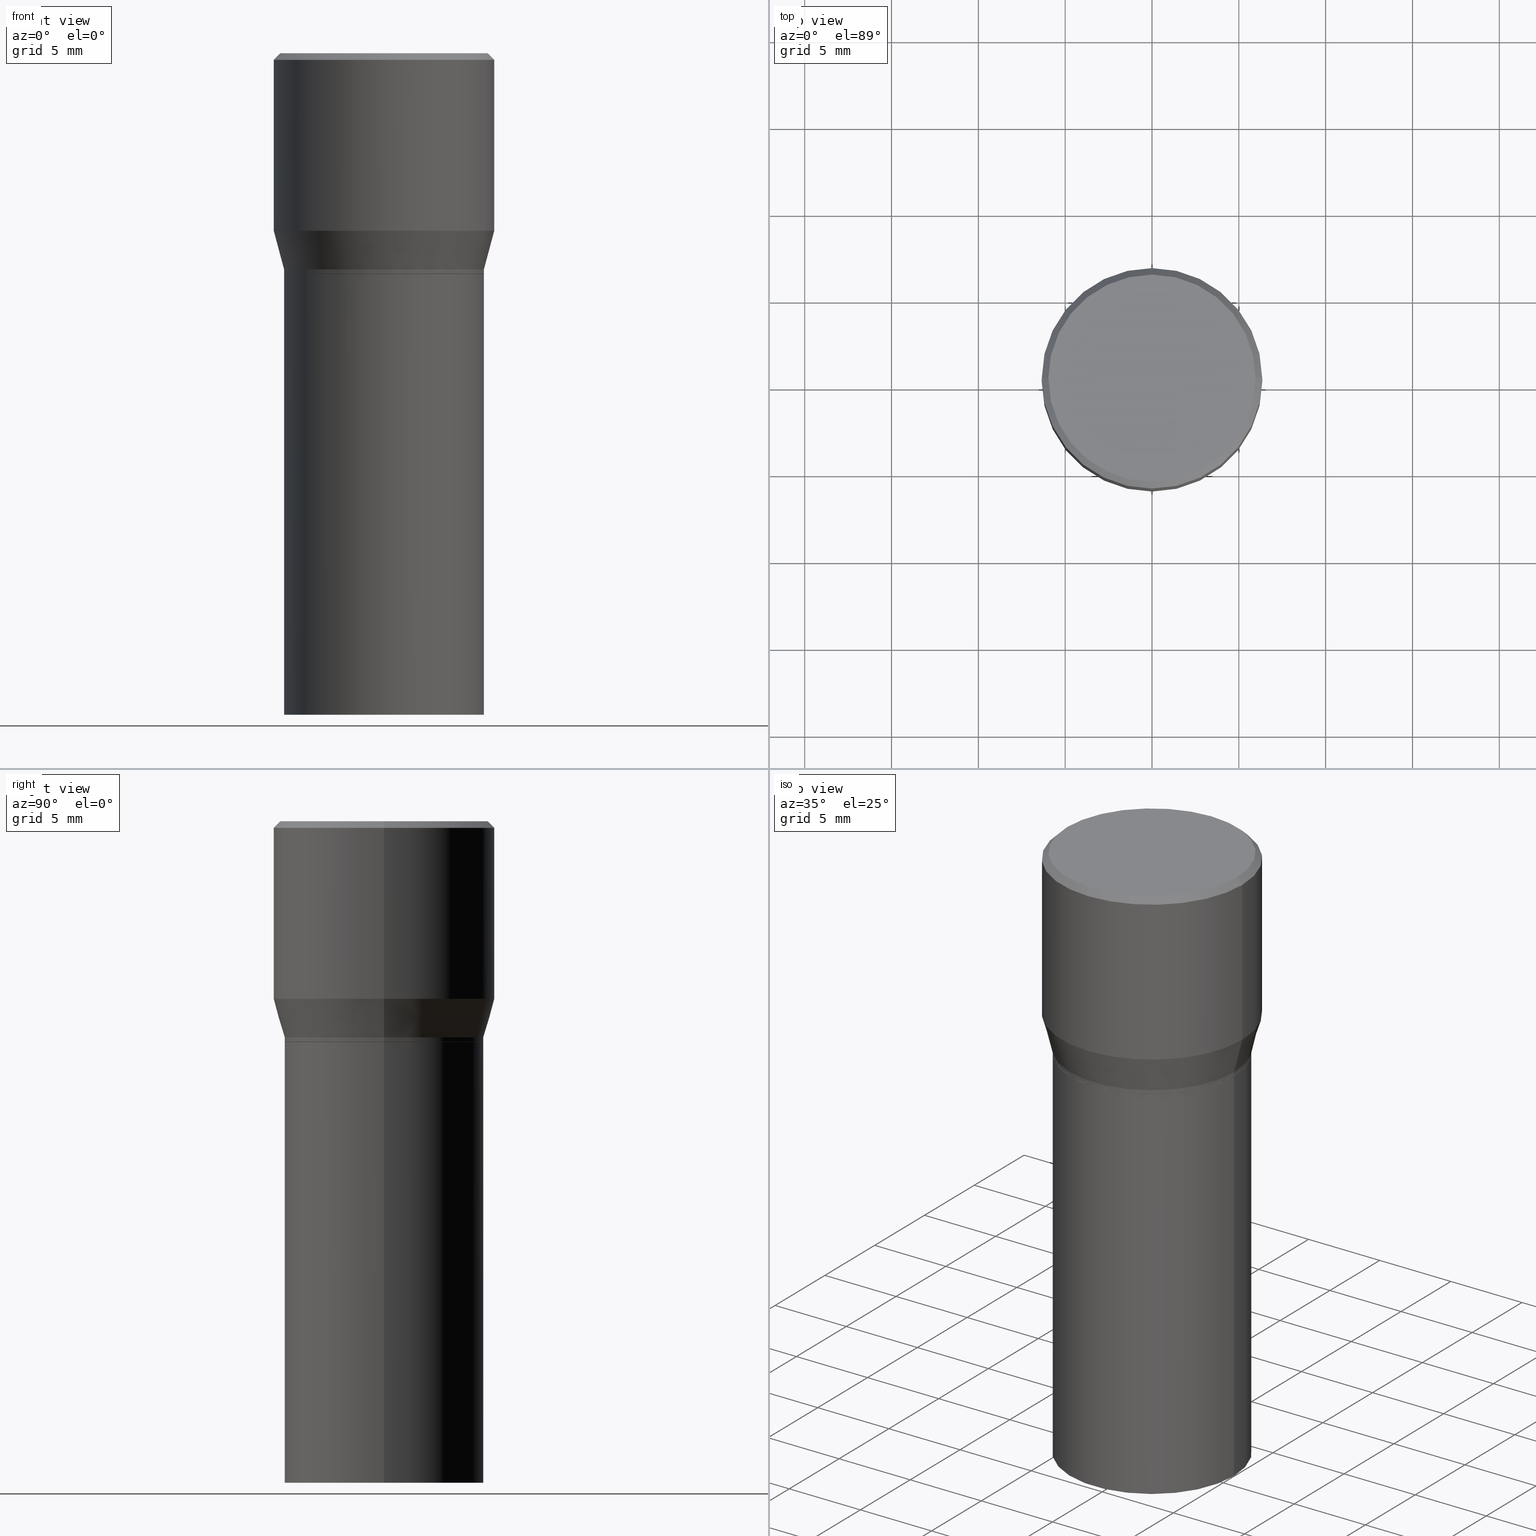
[diagram: canonical four-view strip — front | top / right | iso, engineering-drawing reading convention]
A machine part, canonical four-view strip (front | top / right | iso — engineering-drawing reading convention). The complete STEP part file that produces these views, byte-faithful:
ISO-10303-21;
HEADER;
FILE_DESCRIPTION (( 'STEP AP203' ),
    '1' );
FILE_NAME ('30557.STEP',
    '2024-03-13T16:16:12',
    ( '' ),
    ( '' ),
    'SwSTEP 2.0',
    'SolidWorks 2023',
    '' );
FILE_SCHEMA (( 'CONFIG_CONTROL_DESIGN' ));
ENDSEC;

DATA;
#1 = ORIENTED_EDGE ( 'NONE', *, *, #395, .T. ) ;
#2 = APPROVAL ( #41, 'UNSPECIFIED' ) ;
#3 = ORIENTED_EDGE ( 'NONE', *, *, #202, .T. ) ;
#4 = MANIFOLD_SOLID_BREP ( 'Body-Move/Copy2[1]', #391 ) ;
#5 = CARTESIAN_POINT ( 'NONE',  ( 9.842606206466859638E-30, -1.405263310189985589E-15, -0.4024834085625100810 ) ) ;
#6 = LOCAL_TIME ( 12, 16, 12.00000000000000000, #49 ) ;
#7 = ADVANCED_FACE ( 'NONE', ( #206 ), #348, .F. ) ;
#8 = DIRECTION ( 'NONE',  ( 1.000000000000000000, -6.982962677686265922E-15, 0.000000000000000000 ) ) ;
#9 = LINE ( 'NONE', #401, #205 ) ;
#10 = ORIENTED_EDGE ( 'NONE', *, *, #313, .F. ) ;
#11 = CARTESIAN_POINT ( 'NONE',  ( 1.581990194629835559E-15, 0.2265499999999982528, -0.5000000000000009992 ) ) ;
#12 = ORIENTED_EDGE ( 'NONE', *, *, #185, .T. ) ;
#13 = DIRECTION ( 'NONE',  ( -2.445468806185136597E-29, 3.491481338843145583E-15, 1.000000000000000000 ) ) ;
#14 = DIRECTION ( 'NONE',  ( 0.7071067811865441310, -7.319954787623245001E-15, -0.7071067811865509034 ) ) ;
#15 = ADVANCED_FACE ( 'NONE', ( #140 ), #457, .F. ) ;
#16 = EDGE_CURVE ( 'NONE', #291, #55, #111, .T. ) ;
#17 = AXIS2_PLACEMENT_3D ( 'NONE', #455, #132, #388 ) ;
#18 = LINE ( 'NONE', #126, #339 ) ;
#19 = ORIENTED_EDGE ( 'NONE', *, *, #180, .T. ) ;
#20 = FACE_OUTER_BOUND ( 'NONE', #355, .T. ) ;
#21 = ORIENTED_EDGE ( 'NONE', *, *, #129, .T. ) ;
#22 = EDGE_LOOP ( 'NONE', ( #3, #386, #231, #60 ) ) ;
#23 = DIRECTION ( 'NONE',  ( 1.000000000000000000, -6.982962677686265922E-15, 0.000000000000000000 ) ) ;
#24 = ORIENTED_EDGE ( 'NONE', *, *, #342, .T. ) ;
#25 = AXIS2_PLACEMENT_3D ( 'NONE', #11, #305, #372 ) ;
#26 = CARTESIAN_POINT ( 'NONE',  ( 1.222734403092568719E-29, -1.745740669421573186E-15, -0.5000000000000001110 ) ) ;
#27 = PERSON_AND_ORGANIZATION ( #99, #430 ) ;
#28 = DIRECTION ( 'NONE',  ( 1.000000000000000000, -6.982962677686266711E-15, 4.876176775795935793E-29 ) ) ;
#29 = CALENDAR_DATE ( 2024, 13, 3 ) ;
#30 = DIRECTION ( 'NONE',  ( 1.000000000000000000, -6.982962677686267499E-15, 0.000000000000000000 ) ) ;
#31 = DIRECTION ( 'NONE',  ( -1.000000000000000000, 6.982962677686266711E-15, 0.000000000000000000 ) ) ;
#32 = CIRCLE ( 'NONE', #425, 0.2265500000000000014 ) ;
#33 = ORIENTED_EDGE ( 'NONE', *, *, #43, .T. ) ;
#34 =( GEOMETRIC_REPRESENTATION_CONTEXT ( 3 ) GLOBAL_UNCERTAINTY_ASSIGNED_CONTEXT ( ( #399 ) ) GLOBAL_UNIT_ASSIGNED_CONTEXT ( ( #285, #344, #414 ) ) REPRESENTATION_CONTEXT ( 'NONE', 'WORKASPACE' ) );
#35 = SECURITY_CLASSIFICATION_LEVEL ( 'unclassified' ) ;
#36 = ORIENTED_EDGE ( 'NONE', *, *, #156, .F. ) ;
#37 = CARTESIAN_POINT ( 'NONE',  ( -3.836052468622837406E-45, 5.476866265946494270E-31, 1.568636843340877764E-16 ) ) ;
#38 = EDGE_CURVE ( 'NONE', #377, #159, #459, .T. ) ;
#39 = DIRECTION ( 'NONE',  ( 1.000000000000000000, -6.982962677686266711E-15, 4.876176775795935793E-29 ) ) ;
#40 = CIRCLE ( 'NONE', #17, 0.2500000000000000000 ) ;
#41 = APPROVAL_STATUS ( 'not_yet_approved' ) ;
#42 = CARTESIAN_POINT ( 'NONE',  ( 0.2265500000000000014, -6.819212202894542298E-15, -1.500000000000000222 ) ) ;
#43 = EDGE_CURVE ( 'NONE', #146, #219, #171, .T. ) ;
#44 = ADVANCED_FACE ( 'NONE', ( #465 ), #286, .F. ) ;
#45 = APPROVAL_ROLE ( '' ) ;
#46 = CONICAL_SURFACE ( 'NONE', #309, 0.2265499999999999736, 0.2617993877991501295 ) ;
#47 = APPROVAL_PERSON_ORGANIZATION ( #407, #2, #90 ) ;
#48 = ORIENTED_EDGE ( 'NONE', *, *, #43, .F. ) ;
#49 = COORDINATED_UNIVERSAL_TIME_OFFSET ( 5, 0, .BEHIND. ) ;
#50 = EDGE_LOOP ( 'NONE', ( #127, #117, #276, #36 ) ) ;
#51 = DIRECTION ( 'NONE',  ( 1.000000000000000000, -6.982962677686266711E-15, 0.000000000000000000 ) ) ;
#52 = DIRECTION ( 'NONE',  ( 1.000000000000000000, -6.982962677686266711E-15, 4.876176775795935793E-29 ) ) ;
#53 = DIRECTION ( 'NONE',  ( 0.7071067811865715536, -2.468850131082509496E-15, 0.7071067811865232589 ) ) ;
#54 = EDGE_LOOP ( 'NONE', ( #10, #411, #311, #408 ) ) ;
#55 = VERTEX_POINT ( 'NONE', #370 ) ;
#56 = AXIS2_PLACEMENT_3D ( 'NONE', #166, #274, #94 ) ;
#57 = CONICAL_SURFACE ( 'NONE', #319, 0.2500000000000000000, 0.7853981633974435050 ) ;
#58 = DIRECTION ( 'NONE',  ( -0.2588190451025214611, 5.211531920934551042E-15, 0.9659258262890682012 ) ) ;
#59 = VERTEX_POINT ( 'NONE', #449 ) ;
#60 = ORIENTED_EDGE ( 'NONE', *, *, #271, .F. ) ;
#61 = CC_DESIGN_PERSON_AND_ORGANIZATION_ASSIGNMENT ( #422, #208, ( #258 ) ) ;
#62 = ORIENTED_EDGE ( 'NONE', *, *, #313, .T. ) ;
#63 = FACE_OUTER_BOUND ( 'NONE', #108, .T. ) ;
#64 = AXIS2_PLACEMENT_3D ( 'NONE', #402, #297, #448 ) ;
#65 = ORIENTED_EDGE ( 'NONE', *, *, #78, .F. ) ;
#66 = CONICAL_SURFACE ( 'NONE', #451, 0.2260500000000000009, 0.7853981633974824739 ) ;
#67 = CARTESIAN_POINT ( 'NONE',  ( 3.668203209277705088E-31, -5.237222008264718399E-17, -0.01499999999999999944 ) ) ;
#68 = EDGE_CURVE ( 'NONE', #159, #464, #160, .T. ) ;
#69 = CARTESIAN_POINT ( 'NONE',  ( 3.668203209277705088E-31, -5.237222008264718399E-17, -0.01499999999999999944 ) ) ;
#70 = DIRECTION ( 'NONE',  ( 0.2588190451025214611, 1.565188264969621573E-15, 0.9659258262890682012 ) ) ;
#71 = DIRECTION ( 'NONE',  ( 1.000000000000000000, -6.982962677686267499E-15, 4.878549297894958458E-29 ) ) ;
#72 =( LENGTH_UNIT ( ) NAMED_UNIT ( * ) SI_UNIT ( $, .METRE. ) );
#73 = CIRCLE ( 'NONE', #88, 0.2265499999999999736 ) ;
#74 = VERTEX_POINT ( 'NONE', #196 ) ;
#75 = ORIENTED_EDGE ( 'NONE', *, *, #342, .F. ) ;
#76 = LOCAL_TIME ( 12, 16, 12.00000000000000000, #352 ) ;
#77 = CARTESIAN_POINT ( 'NONE',  ( 1.198279715030717173E-29, -1.710825856033141537E-15, -0.4900000000000001021 ) ) ;
#78 = EDGE_CURVE ( 'NONE', #74, #379, #283, .T. ) ;
#79 = ORIENTED_EDGE ( 'NONE', *, *, #420, .T. ) ;
#80 = CARTESIAN_POINT ( 'NONE',  ( 1.222734403092568719E-29, -1.745740669421573186E-15, -0.5000000000000001110 ) ) ;
#81 = ORIENTED_EDGE ( 'NONE', *, *, #169, .F. ) ;
#82 = CIRCLE ( 'NONE', #398, 0.2265499999999999736 ) ;
#83 = DIRECTION ( 'NONE',  ( -2.445468806185136877E-29, 3.491481338843145188E-15, 1.000000000000000000 ) ) ;
#84 = CARTESIAN_POINT ( 'NONE',  ( -0.2349999999999999867, 1.667182339297596256E-15, 1.568636843340762393E-16 ) ) ;
#85 = COORDINATED_UNIVERSAL_TIME_OFFSET ( 5, 0, .BEHIND. ) ;
#86 = ORIENTED_EDGE ( 'NONE', *, *, #359, .F. ) ;
#87 = DIRECTION ( 'NONE',  ( 1.000000000000000000, -6.982962677686265922E-15, 0.000000000000000000 ) ) ;
#88 = AXIS2_PLACEMENT_3D ( 'NONE', #161, #240, #375 ) ;
#89 = SECURITY_CLASSIFICATION ( '', '', #35 ) ;
#90 = APPROVAL_ROLE ( '' ) ;
#91 = DIRECTION ( 'NONE',  ( 1.000000000000000000, -6.982962677686267499E-15, 0.000000000000000000 ) ) ;
#92 = CARTESIAN_POINT ( 'NONE',  ( 1.221511668689476057E-29, -1.743994928752151682E-15, -0.4995000000000001661 ) ) ;
#93 = EDGE_LOOP ( 'NONE', ( #193, #62, #178, #86 ) ) ;
#94 = DIRECTION ( 'NONE',  ( 1.000000000000000000, -6.982962677686266711E-15, 0.000000000000000000 ) ) ;
#95 = DIRECTION ( 'NONE',  ( -0.7071067811865715536, 7.493145998870439357E-15, 0.7071067811865232589 ) ) ;
#96 = AXIS2_PLACEMENT_3D ( 'NONE', #80, #183, #213 ) ;
#97 = EDGE_LOOP ( 'NONE', ( #81, #233, #199, #120 ) ) ;
#98 = FACE_OUTER_BOUND ( 'NONE', #22, .T. ) ;
#99 = PERSON ( 'UNSPECIFIED', 'UNSPECIFIED', 'UNSPECIFIED', ('UNSPECIFIED'), ('UNSPECIFIED'), ('UNSPECIFIED') ) ;
#100 = ADVANCED_FACE ( 'NONE', ( #98 ), #125, .T. ) ;
#101 = CARTESIAN_POINT ( 'NONE',  ( 0.000000000000000000, 0.000000000000000000, 0.000000000000000000 ) ) ;
#102 = CARTESIAN_POINT ( 'NONE',  ( -0.2260500000000000009, -1.395588152358667583E-16, -0.5000000000000001110 ) ) ;
#103 = CARTESIAN_POINT ( 'NONE',  ( 0.000000000000000000, 0.000000000000000000, 0.000000000000000000 ) ) ;
#104 = CARTESIAN_POINT ( 'NONE',  ( 3.668203209277704895E-29, -5.237222008264718177E-15, -1.500000000000000222 ) ) ;
#105 = VECTOR ( 'NONE', #95, 39.37007874015748854 ) ;
#106 = ADVANCED_FACE ( 'NONE', ( #63 ), #277, .T. ) ;
#107 = DIRECTION ( 'NONE',  ( 1.000000000000000000, -6.982962677686265922E-15, 0.000000000000000000 ) ) ;
#108 = EDGE_LOOP ( 'NONE', ( #452, #147, #210, #110 ) ) ;
#109 = VERTEX_POINT ( 'NONE', #442 ) ;
#110 = ORIENTED_EDGE ( 'NONE', *, *, #38, .F. ) ;
#111 = CIRCLE ( 'NONE', #367, 0.2265500000000000014 ) ;
#112 = ORIENTED_EDGE ( 'NONE', *, *, #186, .T. ) ;
#113 = EDGE_CURVE ( 'NONE', #55, #291, #434, .T. ) ;
#114 = AXIS2_PLACEMENT_3D ( 'NONE', #197, #338, #39 ) ;
#115 = CARTESIAN_POINT ( 'NONE',  ( 1.198279715030717173E-29, -1.710825856033141537E-15, -0.4900000000000001021 ) ) ;
#116 = PERSON_AND_ORGANIZATION ( #99, #430 ) ;
#117 = ORIENTED_EDGE ( 'NONE', *, *, #349, .T. ) ;
#118 = DIRECTION ( 'NONE',  ( -2.445468806185136877E-29, 3.491481338843145188E-15, 1.000000000000000000 ) ) ;
#119 = ADVANCED_FACE ( 'NONE', ( #234 ), #242, .F. ) ;
#120 = ORIENTED_EDGE ( 'NONE', *, *, #420, .F. ) ;
#121 = CARTESIAN_POINT ( 'NONE',  ( 3.668203209277704895E-29, -5.237222008264718177E-15, -1.500000000000000222 ) ) ;
#122 = CARTESIAN_POINT ( 'NONE',  ( 0.2260500000000000009, -3.324239382712553708E-15, -0.5000000000000001110 ) ) ;
#123 = CIRCLE ( 'NONE', #214, 0.2500000000000000000 ) ;
#124 = CONICAL_SURFACE ( 'NONE', #245, 0.2260500000000000009, 0.7853981633974824739 ) ;
#125 = CYLINDRICAL_SURFACE ( 'NONE', #362, 0.2265500000000000014 ) ;
#126 = CARTESIAN_POINT ( 'NONE',  ( -0.2265500000000000014, 1.609734567864506981E-15, -1.114384744697248863E-29 ) ) ;
#127 = ORIENTED_EDGE ( 'NONE', *, *, #176, .F. ) ;
#128 = CARTESIAN_POINT ( 'NONE',  ( 1.222734403092568719E-29, -1.745740669421573186E-15, -0.5000000000000001110 ) ) ;
#129 = EDGE_CURVE ( 'NONE', #219, #146, #190, .T. ) ;
#130 = DIRECTION ( 'NONE',  ( 1.000000000000000000, -6.982962677686266711E-15, 0.000000000000000000 ) ) ;
#131 = SHAPE_DEFINITION_REPRESENTATION ( #364, #149 ) ;
#132 = DIRECTION ( 'NONE',  ( -2.445468806185136597E-29, 3.491481338843145583E-15, 1.000000000000000000 ) ) ;
#133 = PERSON_AND_ORGANIZATION_ROLE ( 'classification_officer' ) ;
#134 = AXIS2_PLACEMENT_3D ( 'NONE', #101, #381, #248 ) ;
#135 = CARTESIAN_POINT ( 'NONE',  ( 0.2265499999999999736, -3.292816050662964671E-15, -0.4900000000000001021 ) ) ;
#136 = LOCAL_TIME ( 12, 16, 12.00000000000000000, #187 ) ;
#137 = DIRECTION ( 'NONE',  ( -2.445468806185136597E-29, 3.491481338843145583E-15, 1.000000000000000000 ) ) ;
#138 = FACE_OUTER_BOUND ( 'NONE', #54, .T. ) ;
#139 = DATE_AND_TIME ( #29, #290 ) ;
#140 = FACE_OUTER_BOUND ( 'NONE', #181, .T. ) ;
#141 = DIRECTION ( 'NONE',  ( 1.000000000000000000, 0.000000000000000000, 0.000000000000000000 ) ) ;
#142 = CC_DESIGN_PERSON_AND_ORGANIZATION_ASSIGNMENT ( #363, #189, ( #368 ) ) ;
#143 = DIMENSIONAL_EXPONENTS ( 1.000000000000000000, 0.000000000000000000, 0.000000000000000000, 0.000000000000000000, 0.000000000000000000, 0.000000000000000000, 0.000000000000000000 ) ;
#144 = FACE_OUTER_BOUND ( 'NONE', #97, .T. ) ;
#145 = PERSON_AND_ORGANIZATION ( #99, #430 ) ;
#146 = VERTEX_POINT ( 'NONE', #337 ) ;
#147 = ORIENTED_EDGE ( 'NONE', *, *, #169, .T. ) ;
#148 = CC_DESIGN_DATE_AND_TIME_ASSIGNMENT ( #192, #157, ( #368 ) ) ;
#149 = ADVANCED_BREP_SHAPE_REPRESENTATION ( '30557', ( #4, #150, #230 ), #34 ) ;
#150 = MANIFOLD_SOLID_BREP ( 'Body-Move/Copy2[2]', #460 ) ;
#151 = VECTOR ( 'NONE', #462, 39.37007874015748143 ) ;
#152 = FACE_OUTER_BOUND ( 'NONE', #307, .T. ) ;
#153 = CC_DESIGN_SECURITY_CLASSIFICATION ( #89, ( #258 ) ) ;
#154 = APPLICATION_PROTOCOL_DEFINITION ( 'international standard', 'config_control_design', 1994, #232 ) ;
#155 = DIRECTION ( 'NONE',  ( -2.445468806185136597E-29, 3.491481338843145583E-15, 1.000000000000000000 ) ) ;
#156 = EDGE_CURVE ( 'NONE', #59, #377, #73, .T. ) ;
#157 = DATE_TIME_ROLE ( 'creation_date' ) ;
#158 = LINE ( 'NONE', #439, #400 ) ;
#159 = VERTEX_POINT ( 'NONE', #200 ) ;
#160 = LINE ( 'NONE', #334, #443 ) ;
#161 = CARTESIAN_POINT ( 'NONE',  ( 1.198279715030717173E-29, -1.710825856033141537E-15, -0.4900000000000001021 ) ) ;
#162 = CARTESIAN_POINT ( 'NONE',  ( 0.000000000000000000, 0.000000000000000000, 0.000000000000000000 ) ) ;
#163 = AXIS2_PLACEMENT_3D ( 'NONE', #270, #410, #244 ) ;
#164 = ORIENTED_EDGE ( 'NONE', *, *, #202, .F. ) ;
#165 = LINE ( 'NONE', #423, #325 ) ;
#166 = CARTESIAN_POINT ( 'NONE',  ( 1.222734403092568719E-29, -1.745740669421573186E-15, -0.5000000000000001110 ) ) ;
#167 = CYLINDRICAL_SURFACE ( 'NONE', #356, 0.2265500000000000014 ) ;
#168 = ADVANCED_FACE ( 'NONE', ( #20 ), #345, .T. ) ;
#169 = EDGE_CURVE ( 'NONE', #59, #109, #158, .T. ) ;
#170 = EDGE_LOOP ( 'NONE', ( #353, #374 ) ) ;
#171 = CIRCLE ( 'NONE', #287, 0.2260500000000000009 ) ;
#172 = DIRECTION ( 'NONE',  ( -2.438088387897960049E-29, 3.491481338843145188E-15, 1.000000000000000000 ) ) ;
#173 = DIRECTION ( 'NONE',  ( 2.445468806185136597E-29, -3.491481338843145583E-15, -1.000000000000000000 ) ) ;
#174 = CYLINDRICAL_SURFACE ( 'NONE', #263, 0.2500000000000000000 ) ;
#175 = CALENDAR_DATE ( 2024, 13, 3 ) ;
#176 = EDGE_CURVE ( 'NONE', #341, #59, #296, .T. ) ;
#177 = VECTOR ( 'NONE', #118, 39.37007874015748143 ) ;
#178 = ORIENTED_EDGE ( 'NONE', *, *, #247, .T. ) ;
#179 = LENGTH_MEASURE_WITH_UNIT ( LENGTH_MEASURE( 0.02539999999999999897 ), #72 );
#180 = EDGE_CURVE ( 'NONE', #55, #74, #18, .T. ) ;
#181 = EDGE_LOOP ( 'NONE', ( #340, #324 ) ) ;
#182 = MECHANICAL_CONTEXT ( 'NONE', #310, 'mechanical' ) ;
#183 = DIRECTION ( 'NONE',  ( -2.445468806185136597E-29, 3.491481338843145583E-15, 1.000000000000000000 ) ) ;
#184 = AXIS2_PLACEMENT_3D ( 'NONE', #67, #173, #393 ) ;
#185 = EDGE_CURVE ( 'NONE', #219, #341, #204, .T. ) ;
#186 = EDGE_CURVE ( 'NONE', #146, #273, #241, .T. ) ;
#187 = COORDINATED_UNIVERSAL_TIME_OFFSET ( 5, 0, .BEHIND. ) ;
#188 = CARTESIAN_POINT ( 'NONE',  ( -0.2260500000000000009, -1.369095880617559516E-16, -0.5000000000000001110 ) ) ;
#189 = PERSON_AND_ORGANIZATION_ROLE ( 'creator' ) ;
#190 = CIRCLE ( 'NONE', #243, 0.2260500000000000009 ) ;
#191 = DIRECTION ( 'NONE',  ( -2.445468806185136597E-29, 3.491481338843145583E-15, 1.000000000000000000 ) ) ;
#192 = DATE_AND_TIME ( #292, #136 ) ;
#193 = ORIENTED_EDGE ( 'NONE', *, *, #201, .F. ) ;
#194 = CARTESIAN_POINT ( 'NONE',  ( 3.668203209277705088E-31, -5.237222008264718399E-17, -0.01499999999999999944 ) ) ;
#195 = DATE_AND_TIME ( #432, #6 ) ;
#196 = CARTESIAN_POINT ( 'NONE',  ( -0.2265500000000000014, -1.881746770978639193E-15, -0.5000000000000001110 ) ) ;
#197 = CARTESIAN_POINT ( 'NONE',  ( 0.000000000000000000, 0.000000000000000000, 0.000000000000000000 ) ) ;
#198 = DIRECTION ( 'NONE',  ( -2.445468806185136877E-29, 3.491481338843145188E-15, 1.000000000000000000 ) ) ;
#199 = ORIENTED_EDGE ( 'NONE', *, *, #38, .T. ) ;
#200 = CARTESIAN_POINT ( 'NONE',  ( 0.2500000000000000000, -3.151003979611552069E-15, -0.4024834085625100810 ) ) ;
#201 = EDGE_CURVE ( 'NONE', #383, #269, #461, .T. ) ;
#202 = EDGE_CURVE ( 'NONE', #273, #341, #32, .T. ) ;
#203 = LOCAL_TIME ( 12, 16, 12.00000000000000000, #85 ) ;
#204 = LINE ( 'NONE', #102, #105 ) ;
#205 = VECTOR ( 'NONE', #83, 39.37007874015748143 ) ;
#206 = FACE_OUTER_BOUND ( 'NONE', #333, .T. ) ;
#207 = ORIENTED_EDGE ( 'NONE', *, *, #186, .F. ) ;
#208 = PERSON_AND_ORGANIZATION_ROLE ( 'creator' ) ;
#209 = FACE_OUTER_BOUND ( 'NONE', #280, .T. ) ;
#210 = ORIENTED_EDGE ( 'NONE', *, *, #220, .F. ) ;
#211 = DIRECTION ( 'NONE',  ( 1.000000000000000000, -6.982962677686266711E-15, 0.000000000000000000 ) ) ;
#212 = DIRECTION ( 'NONE',  ( 2.445468806185136597E-29, -3.491481338843145583E-15, -1.000000000000000000 ) ) ;
#213 = DIRECTION ( 'NONE',  ( 1.000000000000000000, -6.982962677686266711E-15, 0.000000000000000000 ) ) ;
#214 = AXIS2_PLACEMENT_3D ( 'NONE', #315, #216, #427 ) ;
#215 = ORIENTED_EDGE ( 'NONE', *, *, #220, .T. ) ;
#216 = DIRECTION ( 'NONE',  ( -2.445468806185136597E-29, 3.491481338843145583E-15, 1.000000000000000000 ) ) ;
#217 = ORIENTED_EDGE ( 'NONE', *, *, #113, .T. ) ;
#218 = DIRECTION ( 'NONE',  ( -2.445468806185136597E-29, 3.491481338843145583E-15, 1.000000000000000000 ) ) ;
#219 = VERTEX_POINT ( 'NONE', #188 ) ;
#220 = EDGE_CURVE ( 'NONE', #159, #109, #429, .T. ) ;
#221 = CALENDAR_DATE ( 2024, 13, 3 ) ;
#222 = CIRCLE ( 'NONE', #301, 0.2500000000000000000 ) ;
#223 = CC_DESIGN_APPROVAL ( #2, ( #258 ) ) ;
#224 = PRODUCT ( '30557', '30557', '', ( #182 ) ) ;
#225 = APPROVAL_DATE_TIME ( #404, #416 ) ;
#226 = LINE ( 'NONE', #438, #177 ) ;
#227 = VERTEX_POINT ( 'NONE', #293 ) ;
#228 = AXIS2_PLACEMENT_3D ( 'NONE', #121, #308, #91 ) ;
#229 = CARTESIAN_POINT ( 'NONE',  ( 1.198279715030717173E-29, -1.710825856033141537E-15, -0.4900000000000001021 ) ) ;
#230 = AXIS2_PLACEMENT_3D ( 'NONE', #435, #267, #141 ) ;
#231 = ORIENTED_EDGE ( 'NONE', *, *, #238, .F. ) ;
#232 = APPLICATION_CONTEXT ( 'configuration controlled 3d designs of mechanical parts and assemblies' ) ;
#233 = ORIENTED_EDGE ( 'NONE', *, *, #156, .T. ) ;
#234 = FACE_OUTER_BOUND ( 'NONE', #170, .T. ) ;
#235 = FACE_OUTER_BOUND ( 'NONE', #237, .T. ) ;
#236 = DIRECTION ( 'NONE',  ( -2.445468806185136597E-29, 3.491481338843145583E-15, 1.000000000000000000 ) ) ;
#237 = EDGE_LOOP ( 'NONE', ( #215, #1, #417, #266 ) ) ;
#238 = EDGE_CURVE ( 'NONE', #377, #59, #82, .T. ) ;
#239 = ORIENTED_EDGE ( 'NONE', *, *, #68, .T. ) ;
#240 = DIRECTION ( 'NONE',  ( -2.445468806185136597E-29, 3.491481338843145583E-15, 1.000000000000000000 ) ) ;
#241 = LINE ( 'NONE', #122, #346 ) ;
#242 = PLANE ( 'NONE',  #25 ) ;
#243 = AXIS2_PLACEMENT_3D ( 'NONE', #128, #412, #51 ) ;
#244 = DIRECTION ( 'NONE',  ( 1.000000000000000000, -6.982962677686267499E-15, 4.878549297894958458E-29 ) ) ;
#245 = AXIS2_PLACEMENT_3D ( 'NONE', #463, #254, #130 ) ;
#246 = DIRECTION ( 'NONE',  ( -2.445468806185136597E-29, 3.491481338843145583E-15, 1.000000000000000000 ) ) ;
#247 = EDGE_CURVE ( 'NONE', #464, #227, #222, .T. ) ;
#248 = DIRECTION ( 'NONE',  ( 1.000000000000000000, -6.982962677686266711E-15, 4.876176775795935793E-29 ) ) ;
#249 = CIRCLE ( 'NONE', #96, 0.2265500000000000014 ) ;
#250 = APPROVAL_DATE_TIME ( #139, #446 ) ;
#251 = DIRECTION ( 'NONE',  ( -2.445468806185136597E-29, 3.491481338843145583E-15, 1.000000000000000000 ) ) ;
#252 = FACE_OUTER_BOUND ( 'NONE', #259, .T. ) ;
#253 = DIRECTION ( 'NONE',  ( 1.000000000000000000, -6.982962677686266711E-15, 0.000000000000000000 ) ) ;
#254 = DIRECTION ( 'NONE',  ( -2.445468806185136597E-29, 3.491481338843145583E-15, 1.000000000000000000 ) ) ;
#255 = ORIENTED_EDGE ( 'NONE', *, *, #395, .F. ) ;
#256 = DIRECTION ( 'NONE',  ( 1.000000000000000000, -6.982962677686266711E-15, 4.876176775795935793E-29 ) ) ;
#257 = AXIS2_PLACEMENT_3D ( 'NONE', #37, #137, #71 ) ;
#258 = PRODUCT_DEFINITION_FORMATION_WITH_SPECIFIED_SOURCE ( 'ANY', '', #224, .NOT_KNOWN. ) ;
#259 = EDGE_LOOP ( 'NONE', ( #255, #79, #239, #371 ) ) ;
#260 = CC_DESIGN_PERSON_AND_ORGANIZATION_ASSIGNMENT ( #116, #265, ( #224 ) ) ;
#261 = EDGE_LOOP ( 'NONE', ( #268, #21, #112, #303 ) ) ;
#262 = AXIS2_PLACEMENT_3D ( 'NONE', #26, #172, #312 ) ;
#263 = AXIS2_PLACEMENT_3D ( 'NONE', #281, #351, #28 ) ;
#264 = DIRECTION ( 'NONE',  ( -0.7071067811865441310, 2.468850131082221167E-15, -0.7071067811865509034 ) ) ;
#265 = PERSON_AND_ORGANIZATION_ROLE ( 'design_owner' ) ;
#266 = ORIENTED_EDGE ( 'NONE', *, *, #68, .F. ) ;
#267 = DIRECTION ( 'NONE',  ( 0.000000000000000000, 0.000000000000000000, 1.000000000000000000 ) ) ;
#268 = ORIENTED_EDGE ( 'NONE', *, *, #185, .F. ) ;
#269 = VERTEX_POINT ( 'NONE', #84 ) ;
#270 = CARTESIAN_POINT ( 'NONE',  ( -3.836052468622837406E-45, 5.476866265946494270E-31, 1.568636843340877764E-16 ) ) ;
#271 = EDGE_CURVE ( 'NONE', #273, #377, #226, .T. ) ;
#272 = ORIENTED_EDGE ( 'NONE', *, *, #16, .T. ) ;
#273 = VERTEX_POINT ( 'NONE', #366 ) ;
#274 = DIRECTION ( 'NONE',  ( -2.445468806185136597E-29, 3.491481338843145583E-15, 1.000000000000000000 ) ) ;
#275 = CYLINDRICAL_SURFACE ( 'NONE', #369, 0.2265500000000000014 ) ;
#276 = ORIENTED_EDGE ( 'NONE', *, *, #271, .T. ) ;
#277 = CONICAL_SURFACE ( 'NONE', #289, 0.2265499999999999736, 0.2617993877991501295 ) ;
#278 = APPROVAL_PERSON_ORGANIZATION ( #295, #416, #45 ) ;
#279 = DIRECTION ( 'NONE',  ( -2.445468806185136877E-29, 3.491481338843145188E-15, 1.000000000000000000 ) ) ;
#280 = EDGE_LOOP ( 'NONE', ( #33, #12, #164, #207 ) ) ;
#281 = CARTESIAN_POINT ( 'NONE',  ( 0.000000000000000000, 0.000000000000000000, 0.000000000000000000 ) ) ;
#282 = DIRECTION ( 'NONE',  ( 2.438088387897960049E-29, -3.491481338843145188E-15, -1.000000000000000000 ) ) ;
#283 = CIRCLE ( 'NONE', #56, 0.2265500000000000014 ) ;
#284 = CARTESIAN_POINT ( 'NONE',  ( 0.2349999999999999867, -1.689856874500919833E-15, 1.568636843340994368E-16 ) ) ;
#285 =( CONVERSION_BASED_UNIT ( 'INCH', #179 ) LENGTH_UNIT ( ) NAMED_UNIT ( #143 ) );
#286 = PLANE ( 'NONE',  #64 ) ;
#287 = AXIS2_PLACEMENT_3D ( 'NONE', #389, #218, #253 ) ;
#288 = DATE_TIME_ROLE ( 'classification_date' ) ;
#289 = AXIS2_PLACEMENT_3D ( 'NONE', #229, #418, #23 ) ;
#290 = LOCAL_TIME ( 12, 16, 12.00000000000000000, #456 ) ;
#291 = VERTEX_POINT ( 'NONE', #42 ) ;
#292 = CALENDAR_DATE ( 2024, 13, 3 ) ;
#293 = CARTESIAN_POINT ( 'NONE',  ( -0.2500000000000000000, 1.047539074263934229E-15, -0.01499999999999999944 ) ) ;
#294 = CC_DESIGN_APPROVAL ( #416, ( #368 ) ) ;
#295 = PERSON_AND_ORGANIZATION ( #99, #430 ) ;
#296 = LINE ( 'NONE', #336, #329 ) ;
#297 = DIRECTION ( 'NONE',  ( -2.438088387897960049E-29, 3.491481338843145188E-15, 1.000000000000000000 ) ) ;
#298 = DIRECTION ( 'NONE',  ( 1.000000000000000000, -6.982962677686265922E-15, 0.000000000000000000 ) ) ;
#299 = CC_DESIGN_PERSON_AND_ORGANIZATION_ASSIGNMENT ( #145, #133, ( #89 ) ) ;
#300 = ADVANCED_FACE ( 'NONE', ( #152 ), #275, .T. ) ;
#301 = AXIS2_PLACEMENT_3D ( 'NONE', #194, #433, #403 ) ;
#302 = DIRECTION ( 'NONE',  ( -2.445468806185136597E-29, 3.491481338843145583E-15, 1.000000000000000000 ) ) ;
#303 = ORIENTED_EDGE ( 'NONE', *, *, #349, .F. ) ;
#304 = ORIENTED_EDGE ( 'NONE', *, *, #129, .F. ) ;
#305 = DIRECTION ( 'NONE',  ( 2.438088387897960049E-29, -3.491481338843145188E-15, -1.000000000000000000 ) ) ;
#306 = DIRECTION ( 'NONE',  ( 1.000000000000000000, -6.982962677686265922E-15, 0.000000000000000000 ) ) ;
#307 = EDGE_LOOP ( 'NONE', ( #405, #217, #24, #65 ) ) ;
#308 = DIRECTION ( 'NONE',  ( -2.445468806185136597E-29, 3.491481338843145583E-15, 1.000000000000000000 ) ) ;
#309 = AXIS2_PLACEMENT_3D ( 'NONE', #77, #385, #107 ) ;
#310 = APPLICATION_CONTEXT ( 'configuration controlled 3d designs of mechanical parts and assemblies' ) ;
#311 = ORIENTED_EDGE ( 'NONE', *, *, #359, .T. ) ;
#312 = DIRECTION ( 'NONE',  ( 1.000000000000000000, -6.982962677686265922E-15, 4.876176775795935793E-29 ) ) ;
#313 = EDGE_CURVE ( 'NONE', #383, #464, #373, .T. ) ;
#314 = FACE_OUTER_BOUND ( 'NONE', #261, .T. ) ;
#315 = CARTESIAN_POINT ( 'NONE',  ( 3.668203209277705088E-31, -5.237222008264718399E-17, -0.01499999999999999944 ) ) ;
#316 = APPROVAL_ROLE ( '' ) ;
#317 = ADVANCED_FACE ( 'NONE', ( #235 ), #413, .T. ) ;
#318 = CARTESIAN_POINT ( 'NONE',  ( 1.640996229256272519E-15, 0.2349999999999999867, -7.420662724610952803E-16 ) ) ;
#319 = AXIS2_PLACEMENT_3D ( 'NONE', #69, #212, #31 ) ;
#320 = PERSON_AND_ORGANIZATION ( #99, #430 ) ;
#321 = FACE_OUTER_BOUND ( 'NONE', #93, .T. ) ;
#322 = ADVANCED_FACE ( 'NONE', ( #314 ), #66, .T. ) ;
#323 = APPLICATION_PROTOCOL_DEFINITION ( 'international standard', 'config_control_design', 1994, #310 ) ;
#324 = ORIENTED_EDGE ( 'NONE', *, *, #201, .T. ) ;
#325 = VECTOR ( 'NONE', #264, 39.37007874015748143 ) ;
#326 = DESIGN_CONTEXT ( 'detailed design', #232, 'design' ) ;
#327 = PRODUCT_RELATED_PRODUCT_CATEGORY ( 'detail', '', ( #224 ) ) ;
#328 = EDGE_CURVE ( 'NONE', #269, #383, #406, .T. ) ;
#329 = VECTOR ( 'NONE', #198, 39.37007874015748143 ) ;
#330 = CC_DESIGN_APPROVAL ( #446, ( #89 ) ) ;
#331 = DIRECTION ( 'NONE',  ( -2.445468806185136597E-29, 3.491481338843145583E-15, 1.000000000000000000 ) ) ;
#332 = EDGE_CURVE ( 'NONE', #379, #74, #249, .T. ) ;
#333 = EDGE_LOOP ( 'NONE', ( #48, #304 ) ) ;
#334 = CARTESIAN_POINT ( 'NONE',  ( 0.2500000000000000000, -1.745740669421566678E-15, 1.219044193948983948E-29 ) ) ;
#335 = APPROVAL_DATE_TIME ( #195, #2 ) ;
#336 = CARTESIAN_POINT ( 'NONE',  ( -0.2265500000000000014, 1.609734567864506981E-15, -1.114384744697248863E-29 ) ) ;
#337 = CARTESIAN_POINT ( 'NONE',  ( 0.2260500000000000009, -3.324239382712553708E-15, -0.5000000000000001110 ) ) ;
#338 = DIRECTION ( 'NONE',  ( -2.445468806185136597E-29, 3.491481338843145583E-15, 1.000000000000000000 ) ) ;
#339 = VECTOR ( 'NONE', #415, 39.37007874015748143 ) ;
#340 = ORIENTED_EDGE ( 'NONE', *, *, #328, .T. ) ;
#341 = VERTEX_POINT ( 'NONE', #357 ) ;
#342 = EDGE_CURVE ( 'NONE', #291, #379, #9, .T. ) ;
#343 = CARTESIAN_POINT ( 'NONE',  ( 0.2265499999999999736, -3.292816050662964671E-15, -0.4900000000000001021 ) ) ;
#344 =( NAMED_UNIT ( * ) PLANE_ANGLE_UNIT ( ) SI_UNIT ( $, .RADIAN. ) );
#345 = CYLINDRICAL_SURFACE ( 'NONE', #134, 0.2265500000000000014 ) ;
#346 = VECTOR ( 'NONE', #53, 39.37007874015748854 ) ;
#347 = APPROVAL_PERSON_ORGANIZATION ( #320, #446, #316 ) ;
#348 = PLANE ( 'NONE',  #262 ) ;
#349 = EDGE_CURVE ( 'NONE', #341, #273, #376, .T. ) ;
#350 = FACE_OUTER_BOUND ( 'NONE', #50, .T. ) ;
#351 = DIRECTION ( 'NONE',  ( -2.445468806185136597E-29, 3.491481338843145583E-15, 1.000000000000000000 ) ) ;
#352 = COORDINATED_UNIVERSAL_TIME_OFFSET ( 5, 0, .BEHIND. ) ;
#353 = ORIENTED_EDGE ( 'NONE', *, *, #332, .T. ) ;
#354 = LINE ( 'NONE', #458, #151 ) ;
#355 = EDGE_LOOP ( 'NONE', ( #272, #19, #454, #75 ) ) ;
#356 = AXIS2_PLACEMENT_3D ( 'NONE', #103, #246, #256 ) ;
#357 = CARTESIAN_POINT ( 'NONE',  ( -0.2265500000000000014, -1.342603608876448985E-16, -0.4995000000000001661 ) ) ;
#358 = CARTESIAN_POINT ( 'NONE',  ( 0.2500000000000000000, -1.798112889504214151E-15, -0.01499999999999999944 ) ) ;
#359 = EDGE_CURVE ( 'NONE', #269, #227, #165, .T. ) ;
#360 = DATE_AND_TIME ( #175, #76 ) ;
#361 = EDGE_LOOP ( 'NONE', ( #440, #441 ) ) ;
#362 = AXIS2_PLACEMENT_3D ( 'NONE', #380, #13, #409 ) ;
#363 = PERSON_AND_ORGANIZATION ( #99, #430 ) ;
#364 = PRODUCT_DEFINITION_SHAPE ( 'NONE', 'NONE',  #368 ) ;
#365 = CARTESIAN_POINT ( 'NONE',  ( 1.221511668689476057E-29, -1.743994928752151682E-15, -0.4995000000000001661 ) ) ;
#366 = CARTESIAN_POINT ( 'NONE',  ( 0.2265500000000000014, -3.325985123381975211E-15, -0.4995000000000001661 ) ) ;
#367 = AXIS2_PLACEMENT_3D ( 'NONE', #104, #251, #30 ) ;
#368 = PRODUCT_DEFINITION ( 'UNKNOWN', '', #258, #326 ) ;
#369 = AXIS2_PLACEMENT_3D ( 'NONE', #162, #302, #52 ) ;
#370 = CARTESIAN_POINT ( 'NONE',  ( -0.2265500000000000014, -1.881746770978639193E-15, -1.500000000000000222 ) ) ;
#371 = ORIENTED_EDGE ( 'NONE', *, *, #453, .F. ) ;
#372 = DIRECTION ( 'NONE',  ( -1.000000000000000000, 6.982962677686265922E-15, -4.876176775795935793E-29 ) ) ;
#373 = LINE ( 'NONE', #445, #384 ) ;
#374 = ORIENTED_EDGE ( 'NONE', *, *, #78, .T. ) ;
#375 = DIRECTION ( 'NONE',  ( 1.000000000000000000, -6.982962677686265922E-15, 0.000000000000000000 ) ) ;
#376 = CIRCLE ( 'NONE', #392, 0.2265500000000000014 ) ;
#377 = VERTEX_POINT ( 'NONE', #343 ) ;
#378 = ADVANCED_FACE ( 'NONE', ( #350 ), #167, .T. ) ;
#379 = VERTEX_POINT ( 'NONE', #426 ) ;
#380 = CARTESIAN_POINT ( 'NONE',  ( 0.000000000000000000, 0.000000000000000000, 0.000000000000000000 ) ) ;
#381 = DIRECTION ( 'NONE',  ( -2.445468806185136597E-29, 3.491481338843145583E-15, 1.000000000000000000 ) ) ;
#382 = CC_DESIGN_DATE_AND_TIME_ASSIGNMENT ( #360, #288, ( #89 ) ) ;
#383 = VERTEX_POINT ( 'NONE', #284 ) ;
#384 = VECTOR ( 'NONE', #14, 39.37007874015748143 ) ;
#385 = DIRECTION ( 'NONE',  ( -2.445468806185136597E-29, 3.491481338843145583E-15, 1.000000000000000000 ) ) ;
#386 = ORIENTED_EDGE ( 'NONE', *, *, #176, .T. ) ;
#387 = DIRECTION ( 'NONE',  ( -2.445468806185136597E-29, 3.491481338843145583E-15, 1.000000000000000000 ) ) ;
#388 = DIRECTION ( 'NONE',  ( 1.000000000000000000, -6.982962677686265922E-15, 0.000000000000000000 ) ) ;
#389 = CARTESIAN_POINT ( 'NONE',  ( 1.222734403092568719E-29, -1.745740669421573186E-15, -0.5000000000000001110 ) ) ;
#390 = CARTESIAN_POINT ( 'NONE',  ( 1.222734403092568719E-29, -1.745740669421573186E-15, -0.5000000000000001110 ) ) ;
#391 = CLOSED_SHELL ( 'NONE', ( #168, #44, #300, #119 ) ) ;
#392 = AXIS2_PLACEMENT_3D ( 'NONE', #365, #191, #87 ) ;
#393 = DIRECTION ( 'NONE',  ( -1.000000000000000000, 6.982962677686266711E-15, 0.000000000000000000 ) ) ;
#394 = APPROVAL_STATUS ( 'not_yet_approved' ) ;
#395 = EDGE_CURVE ( 'NONE', #109, #227, #354, .T. ) ;
#396 = ADVANCED_FACE ( 'NONE', ( #144 ), #46, .T. ) ;
#397 = VECTOR ( 'NONE', #70, 39.37007874015747433 ) ;
#398 = AXIS2_PLACEMENT_3D ( 'NONE', #115, #155, #298 ) ;
#399 = UNCERTAINTY_MEASURE_WITH_UNIT (LENGTH_MEASURE( 1.000000000000000082E-05 ), #285, 'distance_accuracy_value', 'NONE');
#400 = VECTOR ( 'NONE', #58, 39.37007874015747433 ) ;
#401 = CARTESIAN_POINT ( 'NONE',  ( 0.2265500000000000014, -1.581990194629823726E-15, 1.104697848556569281E-29 ) ) ;
#402 = CARTESIAN_POINT ( 'NONE',  ( 3.576687321579069994E-29, -5.368277968210015545E-15, -1.500000000000000222 ) ) ;
#403 = DIRECTION ( 'NONE',  ( 1.000000000000000000, -6.982962677686266711E-15, 0.000000000000000000 ) ) ;
#404 = DATE_AND_TIME ( #221, #203 ) ;
#405 = ORIENTED_EDGE ( 'NONE', *, *, #180, .F. ) ;
#406 = CIRCLE ( 'NONE', #257, 0.2349999999999999867 ) ;
#407 = PERSON_AND_ORGANIZATION ( #99, #430 ) ;
#408 = ORIENTED_EDGE ( 'NONE', *, *, #453, .T. ) ;
#409 = DIRECTION ( 'NONE',  ( 1.000000000000000000, -6.982962677686266711E-15, 4.876176775795935793E-29 ) ) ;
#410 = DIRECTION ( 'NONE',  ( -2.445468806185136597E-29, 3.491481338843145583E-15, 1.000000000000000000 ) ) ;
#411 = ORIENTED_EDGE ( 'NONE', *, *, #328, .F. ) ;
#412 = DIRECTION ( 'NONE',  ( -2.445468806185136597E-29, 3.491481338843145583E-15, 1.000000000000000000 ) ) ;
#413 = CYLINDRICAL_SURFACE ( 'NONE', #114, 0.2500000000000000000 ) ;
#414 =( NAMED_UNIT ( * ) SI_UNIT ( $, .STERADIAN. ) SOLID_ANGLE_UNIT ( ) );
#415 = DIRECTION ( 'NONE',  ( -2.445468806185136877E-29, 3.491481338843145188E-15, 1.000000000000000000 ) ) ;
#416 = APPROVAL ( #436, 'UNSPECIFIED' ) ;
#417 = ORIENTED_EDGE ( 'NONE', *, *, #247, .F. ) ;
#418 = DIRECTION ( 'NONE',  ( -2.445468806185136597E-29, 3.491481338843145583E-15, 1.000000000000000000 ) ) ;
#419 = CONICAL_SURFACE ( 'NONE', #184, 0.2500000000000000000, 0.7853981633974435050 ) ;
#420 = EDGE_CURVE ( 'NONE', #109, #159, #40, .T. ) ;
#421 = ADVANCED_FACE ( 'NONE', ( #138 ), #419, .T. ) ;
#422 = PERSON_AND_ORGANIZATION ( #99, #430 ) ;
#423 = CARTESIAN_POINT ( 'NONE',  ( -0.2500000000000000000, 1.693368449338919401E-15, -0.01499999999999999944 ) ) ;
#424 = DIRECTION ( 'NONE',  ( -1.000000000000000000, 6.982962677686265922E-15, -4.876176775795935793E-29 ) ) ;
#425 = AXIS2_PLACEMENT_3D ( 'NONE', #92, #236, #306 ) ;
#426 = CARTESIAN_POINT ( 'NONE',  ( 0.2265500000000000014, -3.327730864051397109E-15, -0.5000000000000001110 ) ) ;
#427 = DIRECTION ( 'NONE',  ( 1.000000000000000000, -6.982962677686266711E-15, 0.000000000000000000 ) ) ;
#428 = ADVANCED_FACE ( 'NONE', ( #252 ), #174, .T. ) ;
#429 = CIRCLE ( 'NONE', #444, 0.2500000000000000000 ) ;
#430 = ORGANIZATION ( 'UNSPECIFIED', 'UNSPECIFIED', '' ) ;
#431 = ADVANCED_FACE ( 'NONE', ( #321 ), #57, .T. ) ;
#432 = CALENDAR_DATE ( 2024, 13, 3 ) ;
#433 = DIRECTION ( 'NONE',  ( -2.445468806185136597E-29, 3.491481338843145583E-15, 1.000000000000000000 ) ) ;
#434 = CIRCLE ( 'NONE', #228, 0.2265500000000000014 ) ;
#435 = CARTESIAN_POINT ( 'NONE',  ( 0.000000000000000000, 0.000000000000000000, 0.000000000000000000 ) ) ;
#436 = APPROVAL_STATUS ( 'not_yet_approved' ) ;
#437 = CC_DESIGN_PERSON_AND_ORGANIZATION_ASSIGNMENT ( #27, #466, ( #258 ) ) ;
#438 = CARTESIAN_POINT ( 'NONE',  ( 0.2265500000000000014, -1.581990194629823726E-15, 1.104697848556569281E-29 ) ) ;
#439 = CARTESIAN_POINT ( 'NONE',  ( -0.2265499999999999736, -1.010912881686348269E-16, -0.4900000000000001021 ) ) ;
#440 = ORIENTED_EDGE ( 'NONE', *, *, #16, .F. ) ;
#441 = ORIENTED_EDGE ( 'NONE', *, *, #113, .F. ) ;
#442 = CARTESIAN_POINT ( 'NONE',  ( -0.2500000000000000000, 3.710935292102651716E-16, -0.4024834085625100810 ) ) ;
#443 = VECTOR ( 'NONE', #279, 39.37007874015748143 ) ;
#444 = AXIS2_PLACEMENT_3D ( 'NONE', #5, #331, #8 ) ;
#445 = CARTESIAN_POINT ( 'NONE',  ( 0.2500000000000000000, -1.767496719525530167E-15, -0.01499999999999999944 ) ) ;
#446 = APPROVAL ( #394, 'UNSPECIFIED' ) ;
#447 = ADVANCED_FACE ( 'NONE', ( #209 ), #124, .T. ) ;
#448 = DIRECTION ( 'NONE',  ( 1.000000000000000000, -6.982962677686265922E-15, 4.876176775795935793E-29 ) ) ;
#449 = CARTESIAN_POINT ( 'NONE',  ( -0.2265499999999999736, 1.350011205208151600E-16, -0.4900000000000001021 ) ) ;
#450 = AXIS2_PLACEMENT_3D ( 'NONE', #318, #282, #424 ) ;
#451 = AXIS2_PLACEMENT_3D ( 'NONE', #390, #387, #211 ) ;
#452 = ORIENTED_EDGE ( 'NONE', *, *, #238, .T. ) ;
#453 = EDGE_CURVE ( 'NONE', #227, #464, #123, .T. ) ;
#454 = ORIENTED_EDGE ( 'NONE', *, *, #332, .F. ) ;
#455 = CARTESIAN_POINT ( 'NONE',  ( 9.842606206466859638E-30, -1.405263310189985589E-15, -0.4024834085625100810 ) ) ;
#456 = COORDINATED_UNIVERSAL_TIME_OFFSET ( 5, 0, .BEHIND. ) ;
#457 = PLANE ( 'NONE',  #450 ) ;
#458 = CARTESIAN_POINT ( 'NONE',  ( -0.2500000000000000000, 1.776356839400250465E-15, -1.229733772563726445E-29 ) ) ;
#459 = LINE ( 'NONE', #135, #397 ) ;
#460 = CLOSED_SHELL ( 'NONE', ( #100, #447, #431, #317, #106, #396, #428, #421, #15, #7, #322, #378 ) ) ;
#461 = CIRCLE ( 'NONE', #163, 0.2349999999999999867 ) ;
#462 = DIRECTION ( 'NONE',  ( -2.445468806185136877E-29, 3.491481338843145188E-15, 1.000000000000000000 ) ) ;
#463 = CARTESIAN_POINT ( 'NONE',  ( 1.222734403092568719E-29, -1.745740669421573186E-15, -0.5000000000000001110 ) ) ;
#464 = VERTEX_POINT ( 'NONE', #358 ) ;
#465 = FACE_OUTER_BOUND ( 'NONE', #361, .T. ) ;
#466 = PERSON_AND_ORGANIZATION_ROLE ( 'design_supplier' ) ;
ENDSEC;
END-ISO-10303-21;
